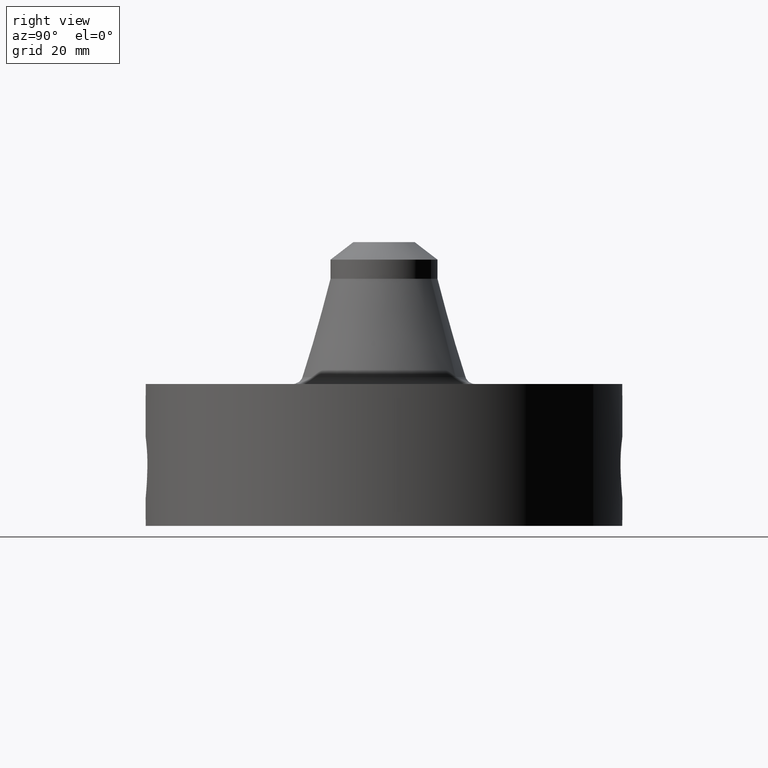
[diagram: clean part render]
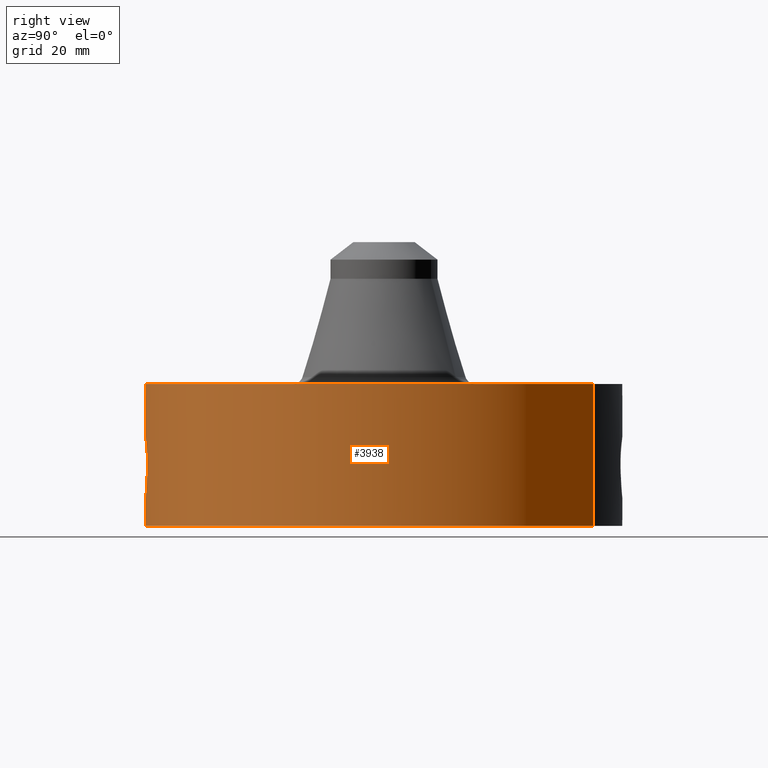
[diagram: same view with one face highlighted and labeled with its STEP entity id]
A machine part, right view. The second image highlights one B-rep face of the part: STEP entity #3938.
In plain terms, the highlighted cylindrical surface (partial cylindrical patch) has radius 74.676 mm, axis along (0, 0, -1).
Its self-contained STEP definition (entity closure, byte-faithful):
#2918=AXIS2_PLACEMENT_3D('Circle Axis2P3D',#2916,#2917,$) ;
#3663=AXIS2_PLACEMENT_3D('Cylinder Axis2P3D',#3660,#3661,#3662) ;
#3811=AXIS2_PLACEMENT_3D('Circle Axis2P3D',#3809,#3810,$) ;
#2916=CARTESIAN_POINT('Axis2P3D Location',(0.,0.,1.75000000001)) ;
#2920=CARTESIAN_POINT('Vertex',(1.4095110835,2.58009273197,1.75000000001)) ;
#2922=CARTESIAN_POINT('Vertex',(-1.4095110835,-2.58009273197,1.75000000001)) ;
#3660=CARTESIAN_POINT('Axis2P3D Location',(0.,0.,1.75000000001)) ;
#3669=CARTESIAN_POINT('Vertex',(-1.4095110835,-2.58009273197,0.)) ;
#3671=CARTESIAN_POINT('Vertex',(1.4095110835,2.58009273197,0.)) ;
#3674=CARTESIAN_POINT('Line Origine',(-1.4095110835,-2.58009273197,0.875000000003)) ;
#3679=CARTESIAN_POINT('Line Origine',(1.4095110835,2.58009273197,0.875000000003)) ;
#3809=CARTESIAN_POINT('Axis2P3D Location',(0.,0.,2.79741234551E-016)) ;
#3821=CARTESIAN_POINT('Control Point',(0.169700366944,-2.93509825824,1.06063443806)) ;
#3822=CARTESIAN_POINT('Control Point',(0.131085530339,-2.93733087581,1.08180932067)) ;
#3823=CARTESIAN_POINT('Control Point',(0.0889177433881,-2.93909301678,1.0965837277)) ;
#3824=CARTESIAN_POINT('Control Point',(0.0448209569412,-2.9399891375,1.10402874798)) ;
#3825=CARTESIAN_POINT('Control Point',(0.000718274456927,-2.93999991227,1.10411849394)) ;
#3826=CARTESIAN_POINT('Vertex',(0.169700366944,-2.93509825824,1.06063443806)) ;
#3828=CARTESIAN_POINT('Vertex',(0.000717903984773,-2.93999991236,1.10411850387)) ;
#3832=CARTESIAN_POINT('Control Point',(0.199791073539,-2.93320362863,1.04211912548)) ;
#3833=CARTESIAN_POINT('Control Point',(0.190079562307,-2.93386511467,1.0487862313)) ;
#3834=CARTESIAN_POINT('Control Point',(0.180032879056,-2.93450085708,1.05496848813)) ;
#3835=CARTESIAN_POINT('Control Point',(0.169700366944,-2.93509825824,1.06063443806)) ;
#3836=CARTESIAN_POINT('Vertex',(0.199780777618,-2.93320402896,1.0421261842)) ;
#3840=CARTESIAN_POINT('Control Point',(0.34506361677,-2.91967996542,0.673306923274)) ;
#3841=CARTESIAN_POINT('Control Point',(0.358309803797,-2.91811445918,0.712767227091)) ;
#3842=CARTESIAN_POINT('Control Point',(0.364827688246,-2.91726797081,0.754868713734)) ;
#3843=CARTESIAN_POINT('Control Point',(0.363474123524,-2.91744520346,0.798064414418)) ;
#3844=CARTESIAN_POINT('Control Point',(0.344937033164,-2.91981225162,0.883429994253)) ;
#3845=CARTESIAN_POINT('Control Point',(0.299056819999,-2.92490799639,0.957520135908)) ;
#3846=CARTESIAN_POINT('Control Point',(0.269831468585,-2.92785982832,0.990770006017)) ;
#3847=CARTESIAN_POINT('Control Point',(0.23637545034,-2.93071186714,1.01904410814)) ;
#3848=CARTESIAN_POINT('Control Point',(0.199780516738,-2.93320434767,1.04212578833)) ;
#3849=CARTESIAN_POINT('Vertex',(0.345064098333,-2.91967961509,0.673306674958)) ;
#3853=CARTESIAN_POINT('Control Point',(0.338276411989,-2.92047411719,0.647346824529)) ;
#3854=CARTESIAN_POINT('Control Point',(0.340865596909,-2.92017421376,0.655911274981)) ;
#3855=CARTESIAN_POINT('Control Point',(0.343130753686,-2.91990840275,0.664574595669)) ;
#3856=CARTESIAN_POINT('Control Point',(0.345065246214,-2.91967977284,0.673311896522)) ;
#3857=CARTESIAN_POINT('Vertex',(0.338277883822,-2.92047432402,0.647351428598)) ;
#3861=CARTESIAN_POINT('Control Point',(0.0275173268744,-2.93987122112,0.340942006435)) ;
#3862=CARTESIAN_POINT('Control Point',(0.0762223838706,-2.9394153396,0.347299418923)) ;
#3863=CARTESIAN_POINT('Control Point',(0.123500792089,-2.937964098,0.362621511105)) ;
#3864=CARTESIAN_POINT('Control Point',(0.166891887136,-2.93566147174,0.386269408407)) ;
#3865=CARTESIAN_POINT('Control Point',(0.241844542405,-2.9304753363,0.444906617807)) ;
#3866=CARTESIAN_POINT('Control Point',(0.294766646899,-2.92532991451,0.521484753118)) ;
#3867=CARTESIAN_POINT('Control Point',(0.315003642531,-2.92313640206,0.561985172128)) ;
#3868=CARTESIAN_POINT('Control Point',(0.329503482281,-2.92149028206,0.604252697726)) ;
#3869=CARTESIAN_POINT('Control Point',(0.338277313576,-2.92047401276,0.647351395214)) ;
#3870=CARTESIAN_POINT('Vertex',(0.0275173268744,-2.93987122112,0.340942006435)) ;
#3874=CARTESIAN_POINT('Control Point',(0.0275173268744,-2.93987122112,0.340942006435)) ;
#3875=CARTESIAN_POINT('Control Point',(0.0183369221419,-2.93995715012,0.340841669845)) ;
#3876=CARTESIAN_POINT('Control Point',(0.00915835337652,-2.94000000851,0.340985895786)) ;
#3877=CARTESIAN_POINT('Control Point',(-2.72878353014E-006,-2.94000000001,0.341374667803)) ;
#3878=CARTESIAN_POINT('Vertex',(-2.72878353467E-006,-2.94000000001,0.341374667803)) ;
#3882=CARTESIAN_POINT('Control Point',(-0.196461758711,-2.93342850219,0.390384428302)) ;
#3883=CARTESIAN_POINT('Control Point',(-0.150541537968,-2.93650393672,0.36807454774)) ;
#3884=CARTESIAN_POINT('Control Point',(-0.101543565511,-2.93882209151,0.352443293338)) ;
#3885=CARTESIAN_POINT('Control Point',(-0.0509887692475,-2.93999995269,0.343538380555)) ;
#3886=CARTESIAN_POINT('Control Point',(-2.72878353537E-006,-2.94000000001,0.341374667803)) ;
#3887=CARTESIAN_POINT('Vertex',(-0.196461421185,-2.93342346249,0.390384428302)) ;
#3891=CARTESIAN_POINT('Control Point',(-0.196461794057,-2.93342849982,0.390384447707)) ;
#3892=CARTESIAN_POINT('Control Point',(-0.196533175314,-2.93342371917,0.390423635179)) ;
#3893=CARTESIAN_POINT('Control Point',(-0.196604556338,-2.93341893505,0.390462822651)) ;
#3894=CARTESIAN_POINT('Vertex',(-0.196604556338,-2.93341893505,0.390462822651)) ;
#3898=CARTESIAN_POINT('Control Point',(-0.196604556338,-2.93341893505,0.390462822651)) ;
#3899=CARTESIAN_POINT('Control Point',(-0.238592000782,-2.93060483891,0.416305213257)) ;
#3900=CARTESIAN_POINT('Control Point',(-0.276117910752,-2.9273351574,0.449020648625)) ;
#3901=CARTESIAN_POINT('Control Point',(-0.30796891229,-2.92401885465,0.486947807944)) ;
#3902=CARTESIAN_POINT('Control Point',(-0.372076346237,-2.91667343123,0.589443113934)) ;
#3903=CARTESIAN_POINT('Control Point',(-0.400070786756,-2.91264589938,0.707593443838)) ;
#3904=CARTESIAN_POINT('Control Point',(-0.403738808339,-2.9121038139,0.779863248878)) ;
#3905=CARTESIAN_POINT('Control Point',(-0.394391606904,-2.91351385758,0.851921489182)) ;
#3906=CARTESIAN_POINT('Control Point',(-0.372039711615,-2.91636528114,0.920500698451)) ;
#3907=CARTESIAN_POINT('Vertex',(-0.372039711615,-2.91636528114,0.920500698451)) ;
#3911=CARTESIAN_POINT('Control Point',(-0.372039711615,-2.91636528114,0.920500698451)) ;
#3912=CARTESIAN_POINT('Control Point',(-0.322920720594,-2.92263137386,0.996138317912)) ;
#3913=CARTESIAN_POINT('Control Point',(-0.251553243538,-2.93070739704,1.05504313551)) ;
#3914=CARTESIAN_POINT('Control Point',(-0.169948928765,-2.93699921288,1.09172364479)) ;
#3915=CARTESIAN_POINT('Control Point',(-0.0841723406352,-2.94000074044,1.10828021464)) ;
#3916=CARTESIAN_POINT('Control Point',(2.58579354897E-005,-2.9399999999,1.10415298444)) ;
#3917=CARTESIAN_POINT('Vertex',(2.58579354869E-005,-2.9399999999,1.10415298444)) ;
#3921=CARTESIAN_POINT('Control Point',(0.000717903970393,-2.93999991236,1.10411850386)) ;
#3922=CARTESIAN_POINT('Control Point',(0.000371902896506,-2.93999999685,1.10413602199)) ;
#3923=CARTESIAN_POINT('Control Point',(2.58579462959E-005,-2.9399999999,1.10415298443)) ;
#2917=DIRECTION('Axis2P3D Direction',(0.,0.,-0.0393700787402)) ;
#3661=DIRECTION('Axis2P3D Direction',(0.,0.,-0.0393700787402)) ;
#3662=DIRECTION('Axis2P3D XDirection',(0.0188750212049,0.0345504945626,0.)) ;
#3675=DIRECTION('Vector Direction',(0.,0.,-0.0393700787402)) ;
#3680=DIRECTION('Vector Direction',(0.,0.,-0.0393700787402)) ;
#3810=DIRECTION('Axis2P3D Direction',(0.,0.,-0.0393700787402)) ;
#3676=VECTOR('Line Direction',#3675,0.0393700787402) ;
#3681=VECTOR('Line Direction',#3680,0.0393700787402) ;
#3815=ORIENTED_EDGE('',*,*,#3813,.F.) ;
#3816=ORIENTED_EDGE('',*,*,#3683,.T.) ;
#3817=ORIENTED_EDGE('',*,*,#2924,.T.) ;
#3818=ORIENTED_EDGE('',*,*,#3678,.F.) ;
#3926=ORIENTED_EDGE('',*,*,#3830,.F.) ;
#3927=ORIENTED_EDGE('',*,*,#3838,.F.) ;
#3928=ORIENTED_EDGE('',*,*,#3851,.F.) ;
#3929=ORIENTED_EDGE('',*,*,#3859,.F.) ;
#3930=ORIENTED_EDGE('',*,*,#3872,.F.) ;
#3931=ORIENTED_EDGE('',*,*,#3880,.T.) ;
#3932=ORIENTED_EDGE('',*,*,#3889,.F.) ;
#3933=ORIENTED_EDGE('',*,*,#3896,.T.) ;
#3934=ORIENTED_EDGE('',*,*,#3909,.T.) ;
#3935=ORIENTED_EDGE('',*,*,#3919,.T.) ;
#3936=ORIENTED_EDGE('',*,*,#3924,.F.) ;
#3937=FACE_BOUND('',#3925,.T.) ;
#3938=ADVANCED_FACE('PartBody',(#3819,#3937),#3664,.T.) ;
#3820=B_SPLINE_CURVE_WITH_KNOTS('',4,(#3821,#3822,#3823,#3824,#3825),.UNSPECIFIED.,.F.,.U.,(5,5),(0.,6.52375944473),.UNSPECIFIED.) ;
#3831=B_SPLINE_CURVE_WITH_KNOTS('',3,(#3832,#3833,#3834,#3835),.UNSPECIFIED.,.F.,.U.,(4,4),(27.4276021789,28.7368170313),.UNSPECIFIED.) ;
#3839=B_SPLINE_CURVE_WITH_KNOTS('',5,(#3840,#3841,#3842,#3843,#3844,#3845,#3846,#3847,#3848),.UNSPECIFIED.,.F.,.U.,(6,3,6),(0.,7.77867063792,15.8636877844),.UNSPECIFIED.) ;
#3852=B_SPLINE_CURVE_WITH_KNOTS('',3,(#3853,#3854,#3855,#3856),.UNSPECIFIED.,.F.,.U.,(4,4),(10.852936171,11.8469806319),.UNSPECIFIED.) ;
#3860=B_SPLINE_CURVE_WITH_KNOTS('',5,(#3861,#3862,#3863,#3864,#3865,#3866,#3867,#3868,#3869),.UNSPECIFIED.,.F.,.U.,(6,3,6),(0.,8.53786061184,16.7787300394),.UNSPECIFIED.) ;
#3873=B_SPLINE_CURVE_WITH_KNOTS('',3,(#3874,#3875,#3876,#3877),.UNSPECIFIED.,.F.,.U.,(4,4),(0.,0.957440174971),.UNSPECIFIED.) ;
#3881=B_SPLINE_CURVE_WITH_KNOTS('',4,(#3882,#3883,#3884,#3885,#3886),.UNSPECIFIED.,.F.,.U.,(5,5),(0.,7.1048496494),.UNSPECIFIED.) ;
#3890=B_SPLINE_CURVE_WITH_KNOTS('',2,(#3891,#3892,#3893),.UNSPECIFIED.,.F.,.U.,(3,3),(-0.00207138548236,0.00207241144611),.UNSPECIFIED.) ;
#3897=B_SPLINE_CURVE_WITH_KNOTS('',5,(#3898,#3899,#3900,#3901,#3902,#3903,#3904,#3905,#3906),.UNSPECIFIED.,.F.,.U.,(6,3,6),(0.,8.57505192544,21.133130129),.UNSPECIFIED.) ;
#3910=B_SPLINE_CURVE_WITH_KNOTS('',5,(#3911,#3912,#3913,#3914,#3915,#3916),.UNSPECIFIED.,.F.,.U.,(6,6),(0.,15.7383818111),.UNSPECIFIED.) ;
#3920=B_SPLINE_CURVE_WITH_KNOTS('',2,(#3921,#3922,#3923),.UNSPECIFIED.,.F.,.U.,(3,3),(1.20450598459,1.23037916553),.UNSPECIFIED.) ;
#2919=CIRCLE('generated circle',#2918,2.94000000001) ;
#3812=CIRCLE('generated circle',#3811,2.94000000001) ;
#3664=CYLINDRICAL_SURFACE('generated cylinder',#3663,2.94000000001) ;
#2924=EDGE_CURVE('',#2921,#2923,#2919,.T.) ;
#3678=EDGE_CURVE('',#3670,#2923,#3677,.F.) ;
#3683=EDGE_CURVE('',#3672,#2921,#3682,.F.) ;
#3813=EDGE_CURVE('',#3672,#3670,#3812,.T.) ;
#3830=EDGE_CURVE('',#3827,#3829,#3820,.T.) ;
#3838=EDGE_CURVE('',#3837,#3827,#3831,.T.) ;
#3851=EDGE_CURVE('',#3850,#3837,#3839,.T.) ;
#3859=EDGE_CURVE('',#3858,#3850,#3852,.T.) ;
#3872=EDGE_CURVE('',#3871,#3858,#3860,.T.) ;
#3880=EDGE_CURVE('',#3871,#3879,#3873,.T.) ;
#3889=EDGE_CURVE('',#3888,#3879,#3881,.T.) ;
#3896=EDGE_CURVE('',#3888,#3895,#3890,.T.) ;
#3909=EDGE_CURVE('',#3895,#3908,#3897,.T.) ;
#3919=EDGE_CURVE('',#3908,#3918,#3910,.T.) ;
#3924=EDGE_CURVE('',#3829,#3918,#3920,.T.) ;
#3814=EDGE_LOOP('',(#3815,#3816,#3817,#3818)) ;
#3925=EDGE_LOOP('',(#3926,#3927,#3928,#3929,#3930,#3931,#3932,#3933,#3934,#3935,#3936)) ;
#3819=FACE_OUTER_BOUND('',#3814,.T.) ;
#3677=LINE('Line',#3674,#3676) ;
#3682=LINE('Line',#3679,#3681) ;
#2921=VERTEX_POINT('',#2920) ;
#2923=VERTEX_POINT('',#2922) ;
#3670=VERTEX_POINT('',#3669) ;
#3672=VERTEX_POINT('',#3671) ;
#3827=VERTEX_POINT('',#3826) ;
#3829=VERTEX_POINT('',#3828) ;
#3837=VERTEX_POINT('',#3836) ;
#3850=VERTEX_POINT('',#3849) ;
#3858=VERTEX_POINT('',#3857) ;
#3871=VERTEX_POINT('',#3870) ;
#3879=VERTEX_POINT('',#3878) ;
#3888=VERTEX_POINT('',#3887) ;
#3895=VERTEX_POINT('',#3894) ;
#3908=VERTEX_POINT('',#3907) ;
#3918=VERTEX_POINT('',#3917) ;